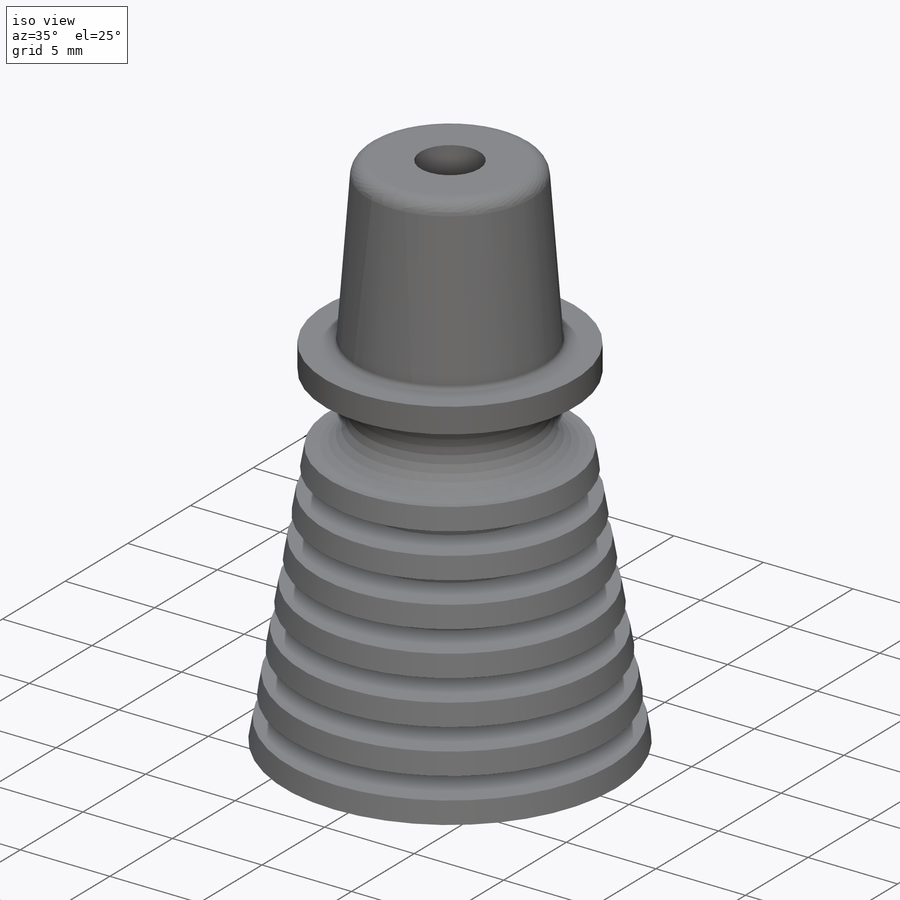
[diagram: iso view]
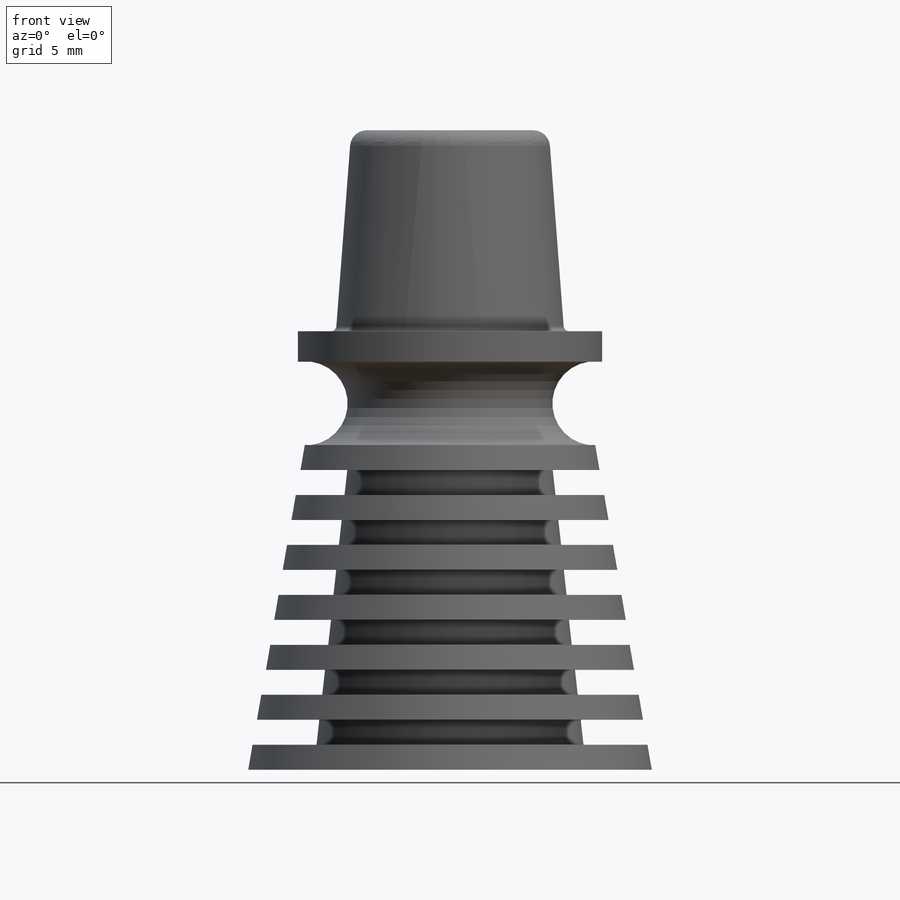
[diagram: front view]
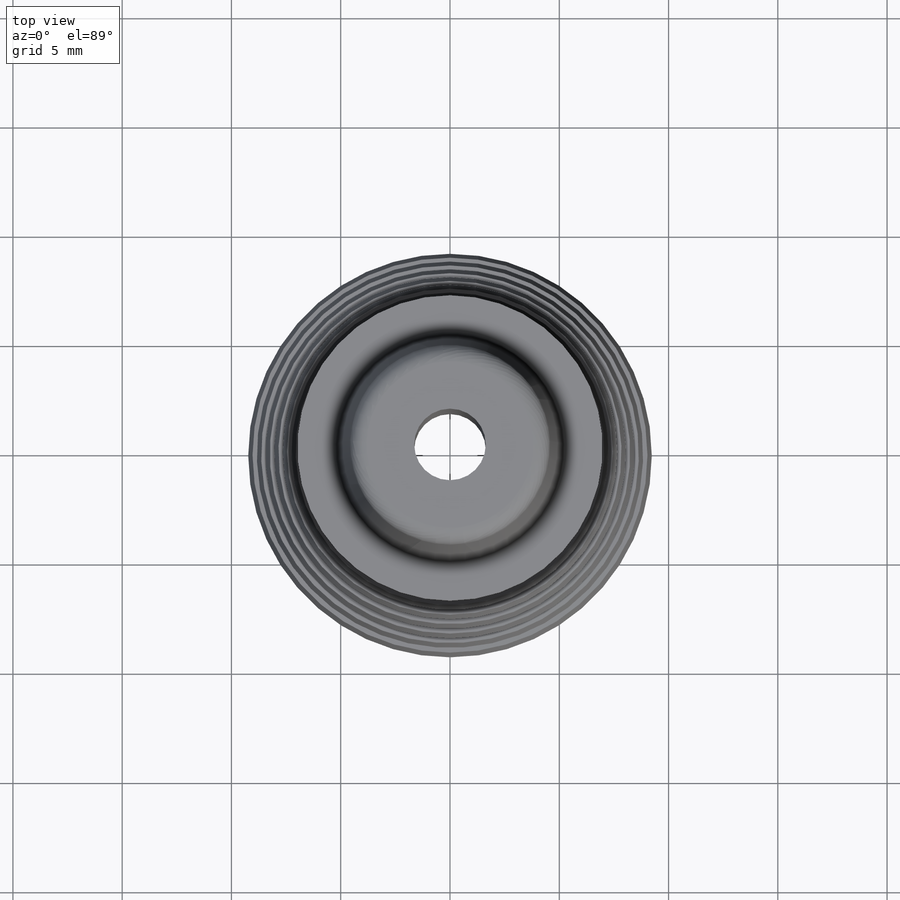
[diagram: top view]
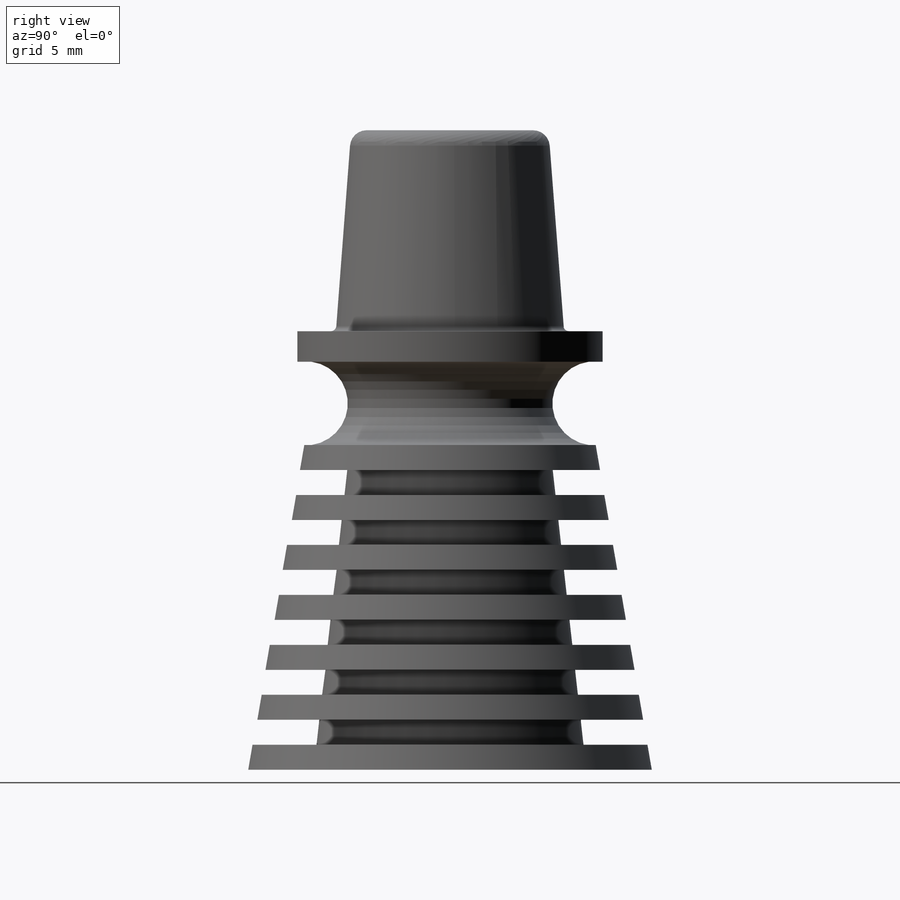
[diagram: right view]
SOLIDWORKS PART (.sldprt)
format: sldprt  version: not decoded by parser v0  size: 332,800 bytes
history: native  units: mm
features: sketch x6, revolve x4, fillet x2, material x1, cut_extrude x1, plane x1 (+12 scaffold rows collapsed)
feature tree (27):
  scaffold x12  (default folders/planes/origin — collapsed)
  material  "Material <not specified>"
  sketch  "Sketch1"  dims[D1=18.4658mm D3=13.335mm D4=8.382mm D5=5.0546mm D2=14.859mm D6=2.032mm]
  revolve  "Revolve1"  Angle=360deg
  sketch  "Sketch2"  dims[D1=1.143mm D2=1.143mm D3=2.286mm D4=1.143mm D5=2.286mm D6=1.143mm D7=2.286mm D8=1.143mm D9=2.286mm D10=2.286mm D11=1.143mm D12=1.143mm]
  revolve  "Revolve2"  Angle=360deg
  sketch  "Sketch3"  dims[c1.D5=~1.906408mm c1.D1=1.397mm c1.D2=20.066mm c1.D3=13.97mm c1.D4=0.635mm c2.D5=9.3726mm]
  revolve  "Revolve3"  Angle=360deg
  sketch  "Sketch4"  dims[D1=9.0424mm D2=10.4394mm D3=29.2608mm]
  revolve  "Revolve4"  Angle=360deg
  sketch  "Sketch5"  dims[D1=3.2766mm]
  cut_extrude  "Cut-Extrude1"  [1 undecoded]
  fillet  "Fillet1"  Radius=0.762mm
  fillet  "Fillet2"  Radius=0.254mm
  plane  "Plane1"
  sketch  "Sketch6"  dims[D1=15.24mm]
decode coverage: 12 of 13 modeling features carry decoded parameters
note: ~ marks probable driven/reference dimensions
note: 1 parameter value undecoded
note: suppression state not decoded; provenance and decode notes live in map.json
